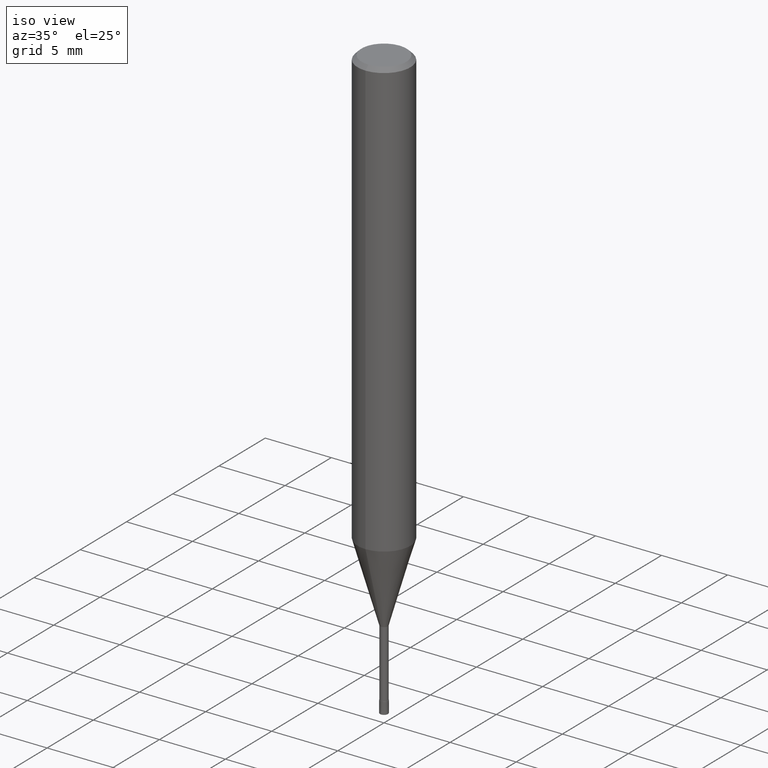
[diagram: clean part render]
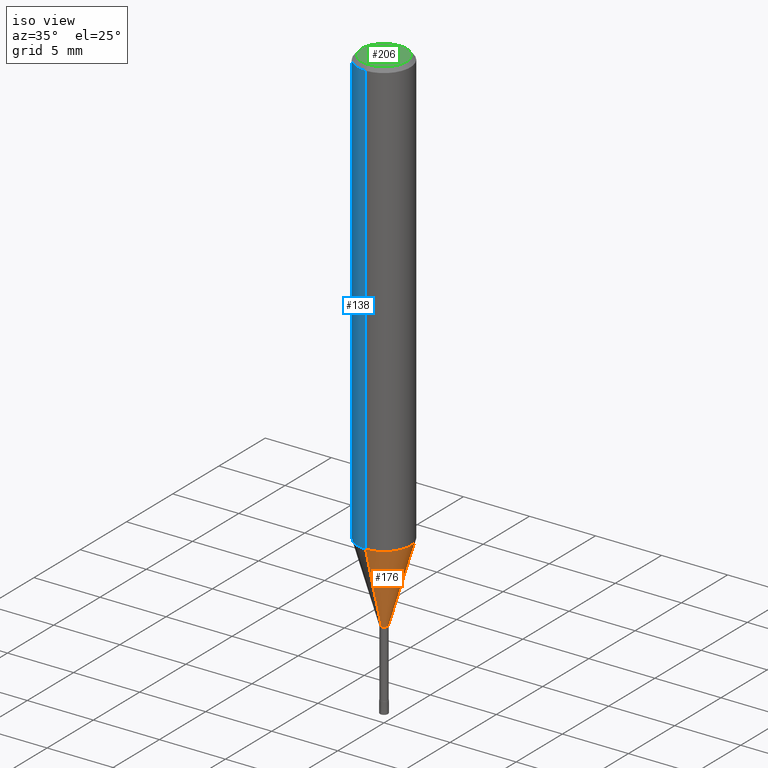
[diagram: same view with three faces highlighted in distinct colors, each labeled with its STEP entity id]
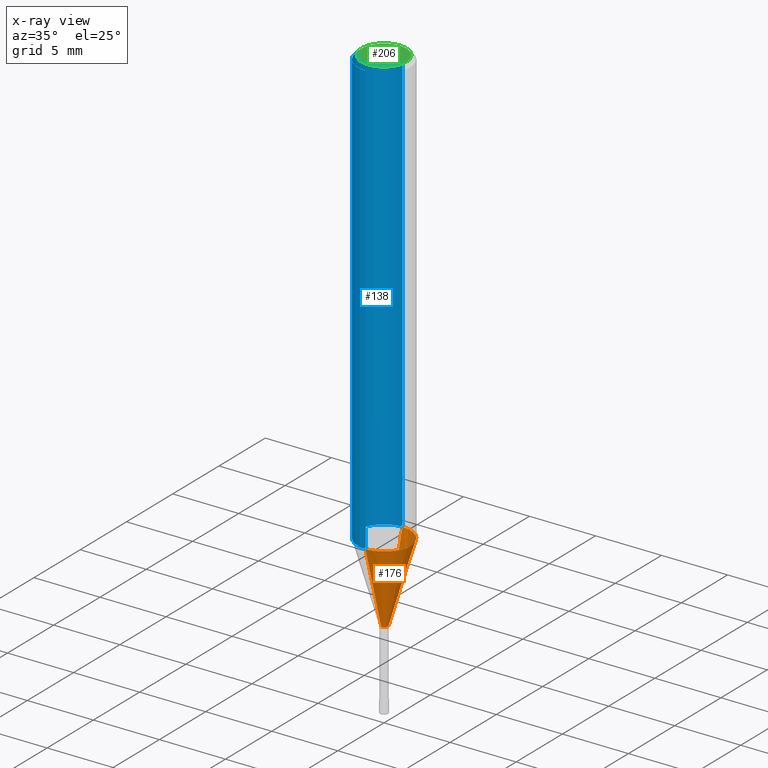
[diagram: x-ray of the same camera — body ghosted, the three highlighted faces saturated]
A machine part, iso view with three faces highlighted in distinct colors.
The next image is the same camera in x-ray (body ghosted, the three faces saturated) — at least one of them is partly hidden behind the body in this view.
Their STEP definitions:

[orange] entity #176 — the highlighted conical surface has half-angle 16.001 deg.
#96=VERTEX_POINT('',#234);
#136=EDGE_CURVE('',#190,#96,#278,.T.);
#144=EDGE_CURVE('',#190,#208,#288,.T.);
#146=EDGE_CURVE('',#148,#208,#290,.T.);
#148=VERTEX_POINT('',#292);
#176=ADVANCED_FACE('',(#324),#325,.T.);
#182=EDGE_CURVE('',#96,#148,#331,.T.);
#190=VERTEX_POINT('',#340);
#208=VERTEX_POINT('',#361);
#234=CARTESIAN_POINT('',(0.0,0.28995,-39.0));
#278=LINE('',#439,#440);
#288=CIRCLE('',#451,1.99995);
#290=LINE('',#454,#455);
#292=CARTESIAN_POINT('',(3.55074612290798E-017,-0.28995,-39.0));
#324=FACE_OUTER_BOUND('',#498,.T.);
#325=CONICAL_SURFACE('',#499,1.14495,0.279273950674422);
#331=CIRCLE('',#507,0.28995);
#340=CARTESIAN_POINT('',(0.0,1.99995,-33.037));
#361=CARTESIAN_POINT('',(2.44915147732706E-016,-1.99995,-33.037));
#439=CARTESIAN_POINT('',(-1.40211304480893E-016,1.14495,-36.0185));
#440=VECTOR('',#598,1.0);
#451=AXIS2_PLACEMENT_3D('',#615,#616,#617);
#454=CARTESIAN_POINT('',(1.40211304480893E-016,-1.14495,-36.0185));
#455=VECTOR('',#618,1.0);
#498=EDGE_LOOP('',(#665,#666,#667,#668));
#499=AXIS2_PLACEMENT_3D('',#669,#670,#671);
#507=AXIS2_PLACEMENT_3D('',#675,#676,#677);
#598=DIRECTION('',(3.37572295972149E-017,-0.275657802132482,-0.961255832816368));
#615=CARTESIAN_POINT('',(0.0,0.0,-33.037));
#616=DIRECTION('',(0.0,0.0,-1.0));
#617=DIRECTION('',(0.0,1.0,0.0));
#618=DIRECTION('',(3.37572295972149E-017,-0.275657802132482,0.961255832816368));
#665=ORIENTED_EDGE('',*,*,#136,.F.);
#666=ORIENTED_EDGE('',*,*,#144,.T.);
#667=ORIENTED_EDGE('',*,*,#146,.F.);
#668=ORIENTED_EDGE('',*,*,#182,.F.);
#669=CARTESIAN_POINT('',(0.0,0.0,-36.0185));
#670=DIRECTION('',(-0.0,-0.0,1.0));
#671=DIRECTION('',(0.0,1.0,0.0));
#675=CARTESIAN_POINT('',(0.0,0.0,-39.0));
#676=DIRECTION('',(0.0,0.0,-1.0));
#677=DIRECTION('',(0.0,1.0,0.0));

[blue] entity #138 — the highlighted cylindrical surface (edge-blend (fillet) strip) has radius 2 mm, axis along (-0, -0, 1).
#94=VERTEX_POINT('',#232);
#100=VERTEX_POINT('',#238);
#110=EDGE_CURVE('',#94,#188,#248,.T.);
#112=EDGE_CURVE('',#188,#100,#250,.T.);
#138=ADVANCED_FACE('',(#280),#281,.T.);
#152=VERTEX_POINT('',#297);
#168=EDGE_CURVE('',#94,#152,#316,.T.);
#170=EDGE_CURVE('',#100,#152,#318,.T.);
#188=VERTEX_POINT('',#338);
#232=CARTESIAN_POINT('',(2.44921270764475E-016,-2.0,-33.037));
#238=CARTESIAN_POINT('',(0.0,2.0,-0.299999999999997));
#248=LINE('',#399,#400);
#250=CIRCLE('',#403,2.0);
#280=FACE_OUTER_BOUND('',#442,.T.);
#281=CYLINDRICAL_SURFACE('',#443,2.0);
#297=CARTESIAN_POINT('',(0.0,2.0,-33.037));
#316=CIRCLE('',#487,2.0);
#318=LINE('',#490,#491);
#338=CARTESIAN_POINT('',(2.44921270764475E-016,-2.0,-0.299999999999997));
#399=CARTESIAN_POINT('',(2.44921270764475E-016,-2.0,-16.6685));
#400=VECTOR('',#560,1.0);
#403=AXIS2_PLACEMENT_3D('',#561,#562,#563);
#442=EDGE_LOOP('',(#600,#601,#602,#603));
#443=AXIS2_PLACEMENT_3D('',#604,#605,#606);
#487=AXIS2_PLACEMENT_3D('',#657,#658,#659);
#490=CARTESIAN_POINT('',(-2.44921270764475E-016,2.0,-16.6685));
#491=VECTOR('',#660,1.0);
#560=DIRECTION('',(-0.0,-0.0,1.0));
#561=CARTESIAN_POINT('',(0.0,0.0,-0.299999999999997));
#562=DIRECTION('',(0.0,0.0,-1.0));
#563=DIRECTION('',(0.0,1.0,0.0));
#600=ORIENTED_EDGE('',*,*,#170,.T.);
#601=ORIENTED_EDGE('',*,*,#168,.F.);
#602=ORIENTED_EDGE('',*,*,#110,.T.);
#603=ORIENTED_EDGE('',*,*,#112,.T.);
#604=CARTESIAN_POINT('',(0.0,0.0,-16.6685));
#605=DIRECTION('',(-0.0,-0.0,1.0));
#606=DIRECTION('',(0.0,1.0,0.0));
#657=CARTESIAN_POINT('',(0.0,0.0,-33.037));
#658=DIRECTION('',(0.0,0.0,-1.0));
#659=DIRECTION('',(0.0,1.0,0.0));
#660=DIRECTION('',(0.0,0.0,-1.0));

[green] entity #206 — the highlighted planar face has unit normal (-0, 0, 1).
#104=EDGE_CURVE('',#178,#116,#242,.T.);
#116=VERTEX_POINT('',#255);
#178=VERTEX_POINT('',#327);
#204=EDGE_CURVE('',#116,#178,#356,.T.);
#206=ADVANCED_FACE('',(#358),#359,.T.);
#242=CIRCLE('',#391,1.7);
#255=CARTESIAN_POINT('',(2.08183080149804E-016,-1.7,0.0));
#327=CARTESIAN_POINT('',(0.0,1.7,0.0));
#356=CIRCLE('',#535,1.7);
#358=FACE_OUTER_BOUND('',#537,.T.);
#359=PLANE('',#538);
#391=AXIS2_PLACEMENT_3D('',#554,#555,#556);
#535=AXIS2_PLACEMENT_3D('',#705,#706,#707);
#537=EDGE_LOOP('',(#709,#710));
#538=AXIS2_PLACEMENT_3D('',#711,#712,#713);
#554=CARTESIAN_POINT('',(0.0,0.0,0.0));
#555=DIRECTION('',(0.0,0.0,-1.0));
#556=DIRECTION('',(0.0,1.0,0.0));
#705=CARTESIAN_POINT('',(0.0,0.0,0.0));
#706=DIRECTION('',(0.0,0.0,-1.0));
#707=DIRECTION('',(0.0,1.0,0.0));
#709=ORIENTED_EDGE('',*,*,#104,.F.);
#710=ORIENTED_EDGE('',*,*,#204,.F.);
#711=CARTESIAN_POINT('',(0.0,0.85,0.0));
#712=DIRECTION('',(-0.0,0.0,1.0));
#713=DIRECTION('',(0.0,-1.0,0.0));